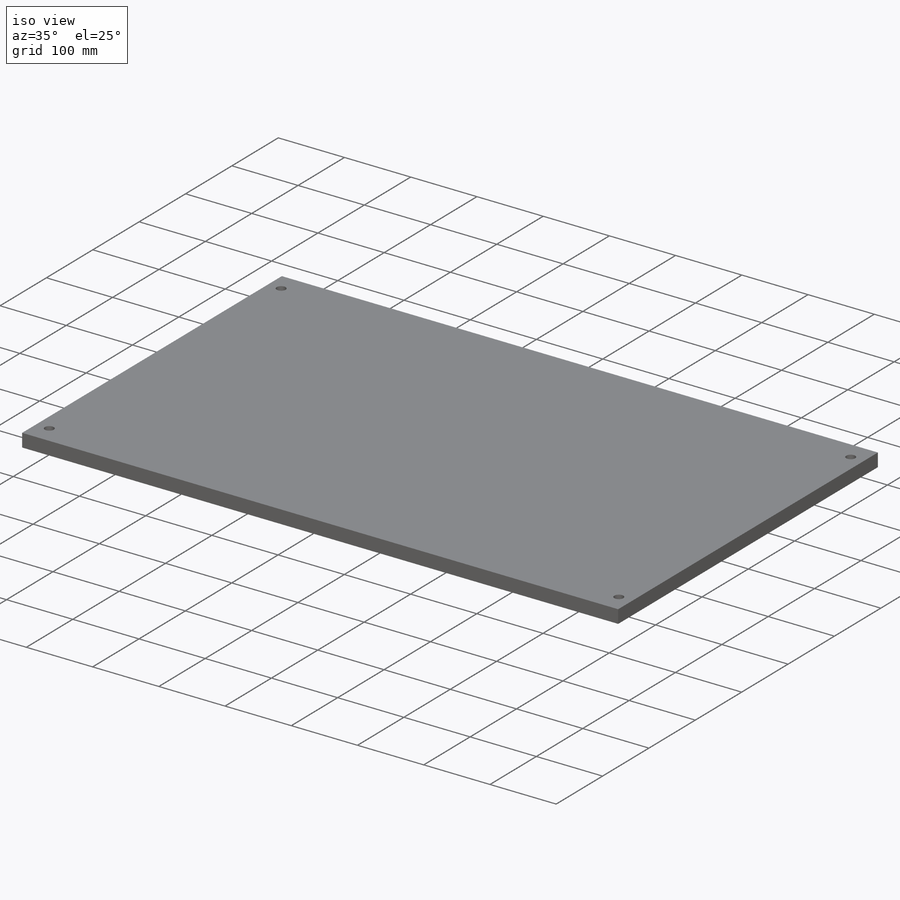
[diagram: iso view]
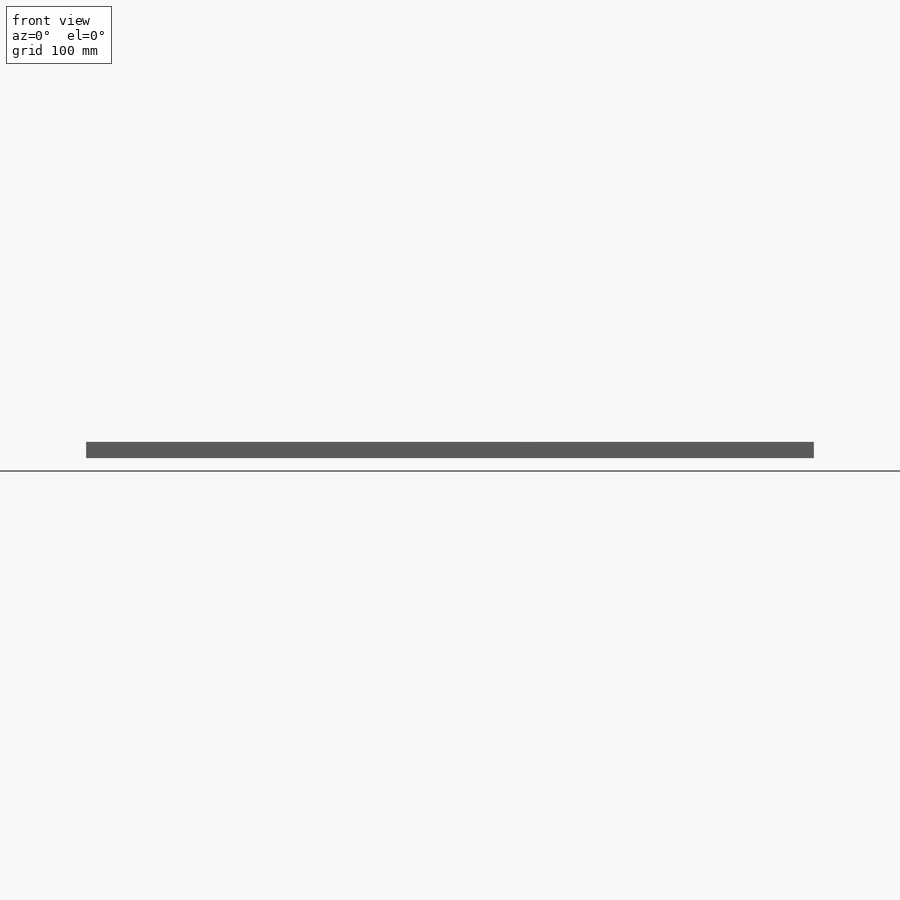
[diagram: front view]
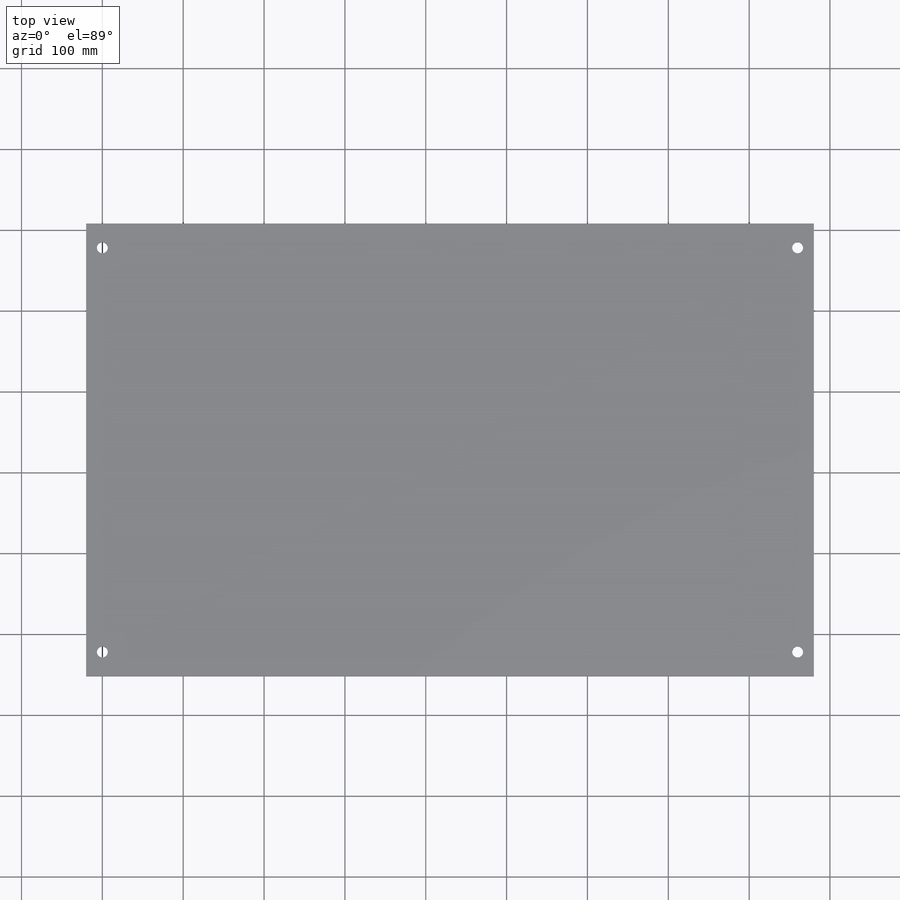
[diagram: top view]
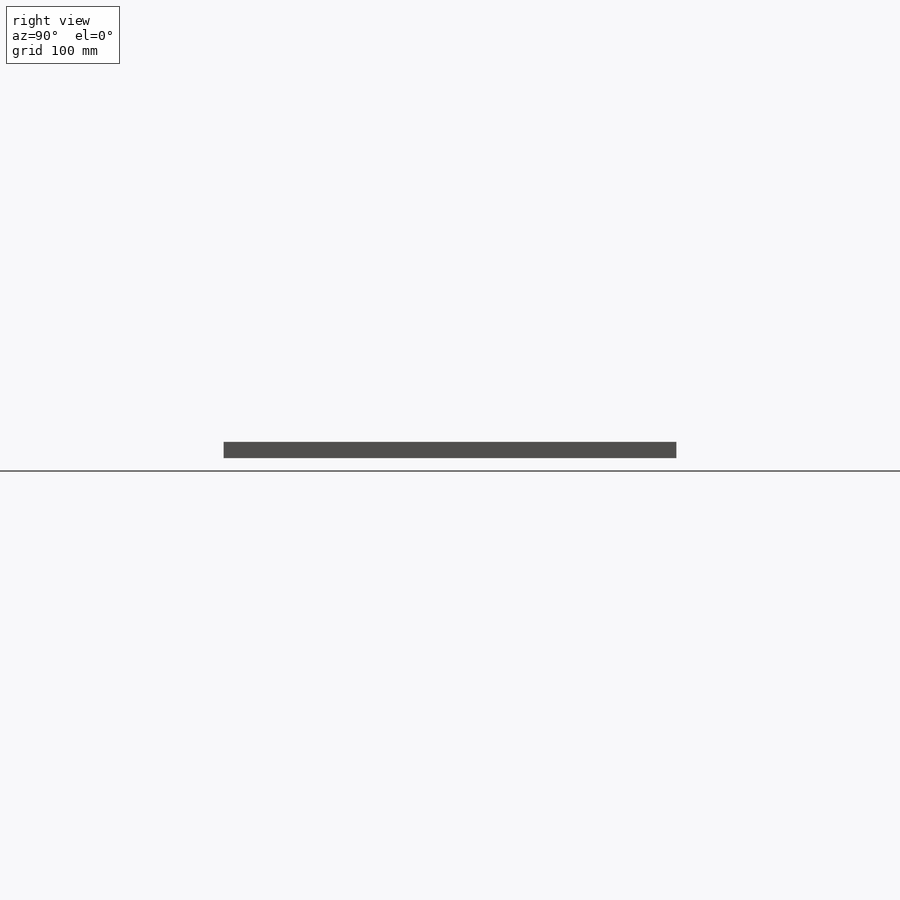
[diagram: right view]
SOLIDWORKS PART (.sldprt)
format: sldprt  version: not decoded by parser v0  size: 200,704 bytes
history: native  units: mm
features: sketch x4, material x1, extrude x1, plane x1, hole x1 (+12 scaffold rows collapsed)
feature tree (20):
  scaffold x12  (default folders/planes/origin — collapsed)
  material  "Copper"
  sketch  "Sketch1"  dims[c1.D1=20.0mm c1.D2=900.0mm c1.D3=540.0mm c1.D4=30.0mm c1.D5=30.0mm c1.D6=20.0mm c2.D1=560.0mm]
  extrude  "Boss-Extrude1"  Depth=20mm
  plane  "Plane1"  Offset=0mm
  sketch  "Sketch2"  dims[c1.D1=20.0mm c1.D2=~59.547194mm c2.D2=90.0deg c3.D2=20.0mm c3.D3=20.0mm c3.D4=20.0mm c3.D5=30.0mm c3.D6=30.0mm c3.D7=30.0mm c3.D8=30.0mm]
  hole  "CBORE for 1/2 Heavy Hex Bolt1"  Diameter=13.49248mm Depth=20mm
  sketch  "3DSketch1"
  sketch  "Sketch3"  dims[hole-wizard template sketch: 41 standard entries collapsed; hole parameters kept: c12.Thru Hole Dia.=~13.49248mm c12.Thru Hole Depth=20.0mm c12.C'Bore Dia.=28.575mm c12.C'Bore Depth=9.2456mm c12.Near C'Sink Dia.=29.845mm c12.D6=~4.399409mm c12.Near C'Sink Angle=90.0deg]
decode coverage: 5 of 6 modeling features carry decoded parameters
note: ~ marks probable driven/reference dimensions
note: suppression state not decoded; provenance and decode notes live in map.json
